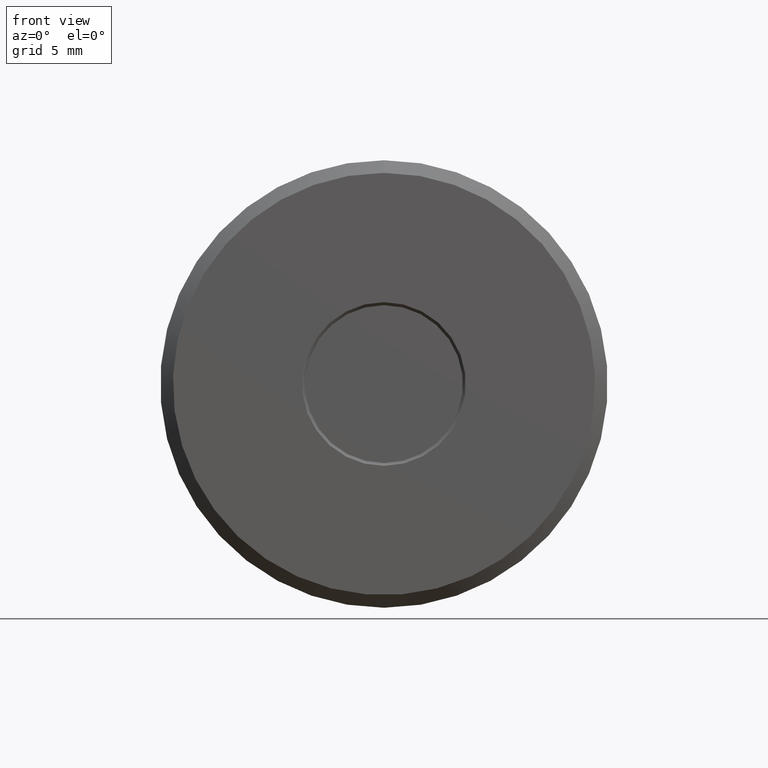
[diagram: clean part render]
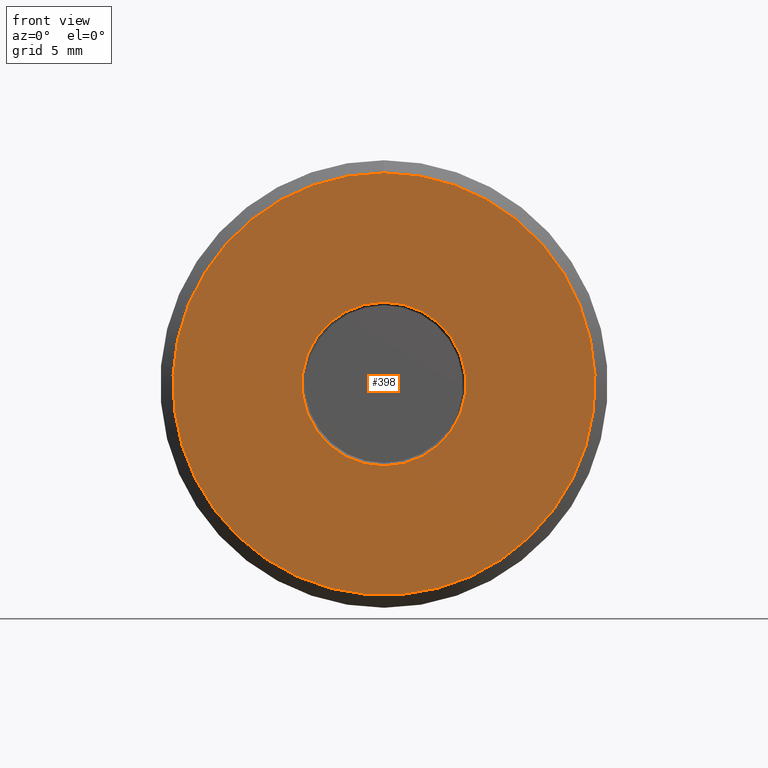
[diagram: same view with one face highlighted and labeled with its STEP entity id]
A machine part, front view. The second image highlights one B-rep face of the part: STEP entity #398.
In plain terms, the highlighted planar face has unit normal (0, -1, 0).
Its self-contained STEP definition (entity closure, byte-faithful):
#25 = AXIS2_PLACEMENT_3D ( 'NONE', #457, #192, #290 ) ;
#95 = CARTESIAN_POINT ( 'NONE',  ( 0.0000000000000000000, -2.039025924733208000E-018, 0.1944460678118643300 ) ) ;
#98 = CARTESIAN_POINT ( 'NONE',  ( 0.0000000000000000000, -1.000892978959771700E-016, 0.5012499999999999700 ) ) ;
#103 = AXIS2_PLACEMENT_3D ( 'NONE', #298, #512, #540 ) ;
#104 = CIRCLE ( 'NONE', #534, 0.1944460678118643300 ) ;
#117 = DIRECTION ( 'NONE',  ( 0.0000000000000000000, 0.0000000000000000000, 1.000000000000000000 ) ) ;
#192 = DIRECTION ( 'NONE',  ( 0.0000000000000000000, -1.000000000000000000, 0.0000000000000000000 ) ) ;
#236 = VERTEX_POINT ( 'NONE', #95 ) ;
#241 = EDGE_LOOP ( 'NONE', ( #478 ) ) ;
#251 = VERTEX_POINT ( 'NONE', #98 ) ;
#290 = DIRECTION ( 'NONE',  ( 0.0000000000000000000, -0.0000000000000000000, -1.000000000000000000 ) ) ;
#298 = CARTESIAN_POINT ( 'NONE',  ( 0.0000000000000000000, -1.000892978959771700E-016, 0.0000000000000000000 ) ) ;
#299 = EDGE_CURVE ( 'NONE', #251, #251, #531, .T. ) ;
#359 = FACE_BOUND ( 'NONE', #241, .T. ) ;
#361 = ORIENTED_EDGE ( 'NONE', *, *, #299, .F. ) ;
#398 = ADVANCED_FACE ( 'NONE', ( #359, #487 ), #491, .T. ) ;
#410 = EDGE_CURVE ( 'NONE', #236, #236, #104, .T. ) ;
#457 = CARTESIAN_POINT ( 'NONE',  ( -0.1944460678118643300, -5.106416191035518700E-017, 0.0000000000000000000 ) ) ;
#472 = DIRECTION ( 'NONE',  ( -0.0000000000000000000, 1.000000000000000000, -0.0000000000000000000 ) ) ;
#478 = ORIENTED_EDGE ( 'NONE', *, *, #410, .T. ) ;
#481 = CARTESIAN_POINT ( 'NONE',  ( 0.0000000000000000000, -2.039025924733208000E-018, 0.0000000000000000000 ) ) ;
#487 = FACE_OUTER_BOUND ( 'NONE', #524, .T. ) ;
#491 = PLANE ( 'NONE',  #25 ) ;
#512 = DIRECTION ( 'NONE',  ( -0.0000000000000000000, 1.000000000000000000, -0.0000000000000000000 ) ) ;
#524 = EDGE_LOOP ( 'NONE', ( #361 ) ) ;
#531 = CIRCLE ( 'NONE', #103, 0.5012499999999999700 ) ;
#534 = AXIS2_PLACEMENT_3D ( 'NONE', #481, #472, #117 ) ;
#540 = DIRECTION ( 'NONE',  ( 0.0000000000000000000, 0.0000000000000000000, 1.000000000000000000 ) ) ;